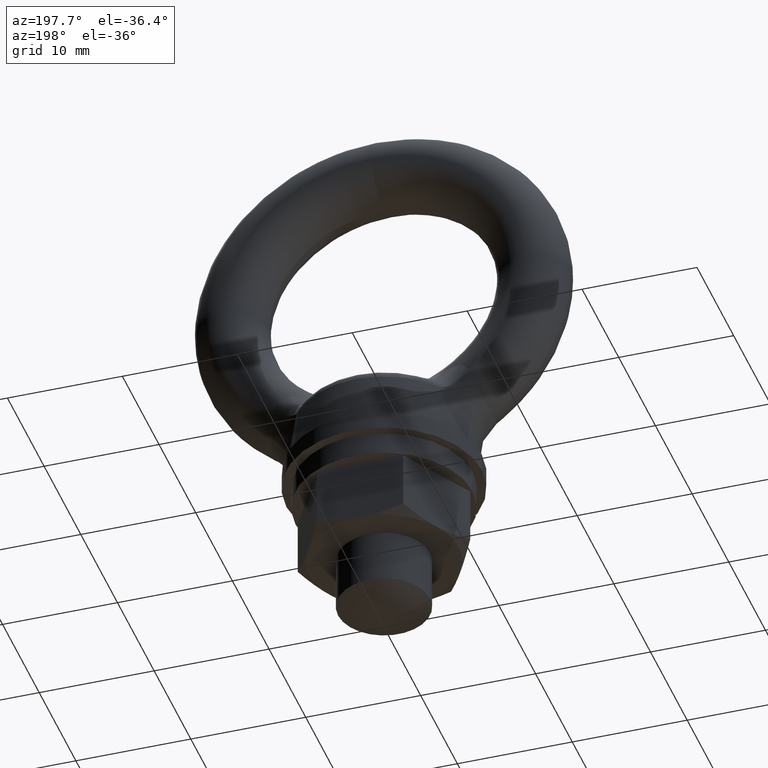
[diagram: clean part render]
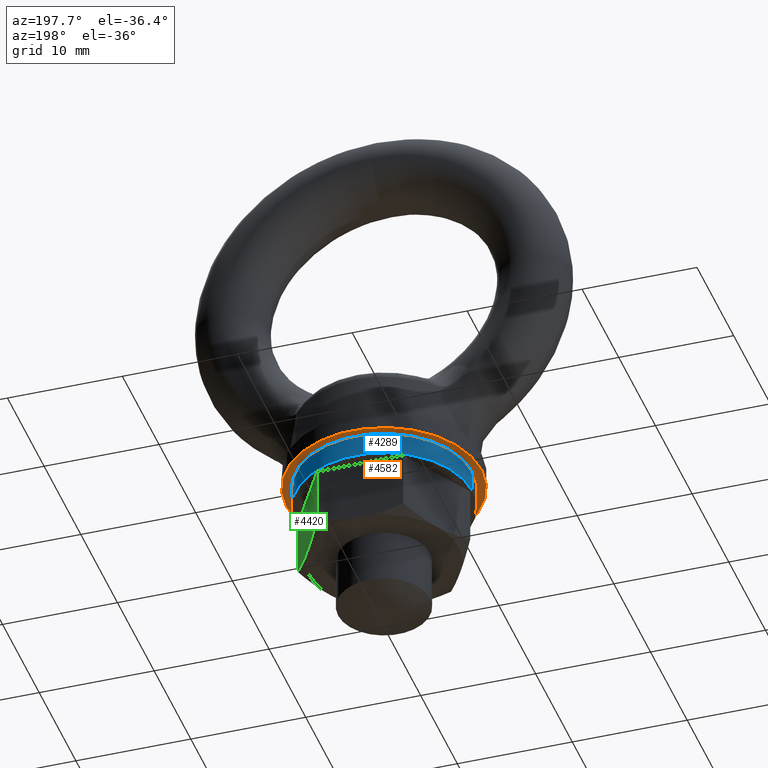
[diagram: same view with three faces highlighted in distinct colors, each labeled with its STEP entity id]
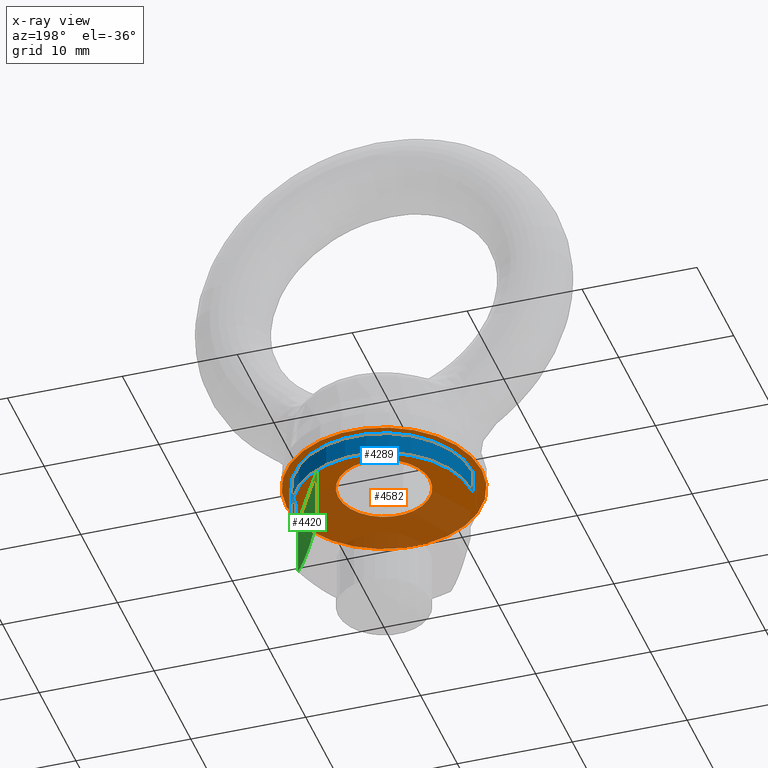
[diagram: x-ray of the same camera — body ghosted, the three highlighted faces saturated]
A machine part, auxiliary view with three faces highlighted in distinct colors.
The next image is the same camera in x-ray (body ghosted, the three faces saturated) — at least one of them is partly hidden behind the body in this view.
Their STEP definitions:

[orange] entity #4582 — the highlighted planar face has unit normal (0, 0, 1).
#1227 = CIRCLE ( 'NONE', #1280, 4.000000000000000000 ) ;
#1277 = DIRECTION ( 'NONE',  ( 1.000000000000000000, 0.0000000000000000000, 0.0000000000000000000 ) ) ;
#1278 = DIRECTION ( 'NONE',  ( 0.0000000000000000000, 0.0000000000000000000, -1.000000000000000000 ) ) ;
#1279 = CARTESIAN_POINT ( 'NONE',  ( 0.0000000000000000000, 0.0000000000000000000, -18.59999900000000000 ) ) ;
#1280 = AXIS2_PLACEMENT_3D ( 'NONE', #1279, #1278, #1277 ) ;
#2324 = DIRECTION ( 'NONE',  ( 1.000000000000000000, 0.0000000000000000000, 0.0000000000000000000 ) ) ;
#2325 = DIRECTION ( 'NONE',  ( 0.0000000000000000000, 0.0000000000000000000, 1.000000000000000000 ) ) ;
#2326 = CARTESIAN_POINT ( 'NONE',  ( 0.0000000000000000000, 0.0000000000000000000, -18.59999900000000000 ) ) ;
#2343 = AXIS2_PLACEMENT_3D ( 'NONE', #2326, #2325, #2324 ) ;
#2344 = PLANE ( 'NONE',  #2343 ) ;
#2345 = FACE_OUTER_BOUND ( 'NONE', #4667, .T. ) ;
#2348 = FACE_BOUND ( 'NONE', #4501, .T. ) ;
#4241 = EDGE_CURVE ( 'NONE', #4259, #4267, #5339, .T. ) ;
#4248 = VERTEX_POINT ( 'NONE', #5389 ) ;
#4257 = EDGE_CURVE ( 'NONE', #4248, #4258, #5371, .T. ) ;
#4258 = VERTEX_POINT ( 'NONE', #5372 ) ;
#4259 = VERTEX_POINT ( 'NONE', #5430 ) ;
#4266 = EDGE_CURVE ( 'NONE', #4267, #4259, #5415, .T. ) ;
#4267 = VERTEX_POINT ( 'NONE', #5410 ) ;
#4461 = EDGE_CURVE ( 'NONE', #4258, #4248, #1227, .T. ) ;
#4501 = EDGE_LOOP ( 'NONE', ( #4618, #4643 ) ) ;
#4582 = ADVANCED_FACE ( 'NONE', ( #2348, #2345 ), #2344, .F. ) ;
#4618 = ORIENTED_EDGE ( 'NONE', *, *, #4461, .F. ) ;
#4619 = ORIENTED_EDGE ( 'NONE', *, *, #4266, .T. ) ;
#4634 = ORIENTED_EDGE ( 'NONE', *, *, #4241, .T. ) ;
#4643 = ORIENTED_EDGE ( 'NONE', *, *, #4257, .F. ) ;
#4667 = EDGE_LOOP ( 'NONE', ( #4619, #4634 ) ) ;
#5335 = DIRECTION ( 'NONE',  ( 1.000000000000000000, 0.0000000000000000000, 0.0000000000000000000 ) ) ;
#5336 = DIRECTION ( 'NONE',  ( 0.0000000000000000000, 0.0000000000000000000, -1.000000000000000000 ) ) ;
#5337 = CARTESIAN_POINT ( 'NONE',  ( 0.0000000000000000000, 0.0000000000000000000, -18.59999900000000000 ) ) ;
#5338 = AXIS2_PLACEMENT_3D ( 'NONE', #5337, #5336, #5335 ) ;
#5339 = CIRCLE ( 'NONE', #5338, 8.500000000000000000 ) ;
#5367 = DIRECTION ( 'NONE',  ( 1.000000000000000000, 0.0000000000000000000, 0.0000000000000000000 ) ) ;
#5368 = DIRECTION ( 'NONE',  ( 0.0000000000000000000, 0.0000000000000000000, -1.000000000000000000 ) ) ;
#5369 = CARTESIAN_POINT ( 'NONE',  ( 0.0000000000000000000, 0.0000000000000000000, -18.59999900000000000 ) ) ;
#5370 = AXIS2_PLACEMENT_3D ( 'NONE', #5369, #5368, #5367 ) ;
#5371 = CIRCLE ( 'NONE', #5370, 4.000000000000000000 ) ;
#5372 = CARTESIAN_POINT ( 'NONE',  ( -4.000000000000000000, 0.0000000000000000000, -18.59999900000000000 ) ) ;
#5389 = CARTESIAN_POINT ( 'NONE',  ( 4.000000000000000000, 4.898425415289509000E-016, -18.59999900000000000 ) ) ;
#5410 = CARTESIAN_POINT ( 'NONE',  ( -8.500000000000000000, 0.0000000000000000000, -18.59999900000000000 ) ) ;
#5411 = DIRECTION ( 'NONE',  ( 1.000000000000000000, 0.0000000000000000000, 0.0000000000000000000 ) ) ;
#5412 = DIRECTION ( 'NONE',  ( 0.0000000000000000000, 0.0000000000000000000, -1.000000000000000000 ) ) ;
#5413 = CARTESIAN_POINT ( 'NONE',  ( 0.0000000000000000000, 0.0000000000000000000, -18.59999900000000000 ) ) ;
#5414 = AXIS2_PLACEMENT_3D ( 'NONE', #5413, #5412, #5411 ) ;
#5415 = CIRCLE ( 'NONE', #5414, 8.500000000000000000 ) ;
#5430 = CARTESIAN_POINT ( 'NONE',  ( 8.500000000000000000, 1.040915400749020900E-015, -18.59999900000000000 ) ) ;

[blue] entity #4289 — the highlighted cylindrical surface (partial cylindrical patch) has radius 7.7 mm, axis along (0, 0, -1).
#4218 = EDGE_CURVE ( 'NONE', #4295, #4219, #4896, .T. ) ;
#4219 = VERTEX_POINT ( 'NONE', #4907 ) ;
#4220 = ORIENTED_EDGE ( 'NONE', *, *, #4221, .F. ) ;
#4221 = EDGE_CURVE ( 'NONE', #4222, #4219, #4906, .T. ) ;
#4222 = VERTEX_POINT ( 'NONE', #4901 ) ;
#4223 = ORIENTED_EDGE ( 'NONE', *, *, #4224, .F. ) ;
#4224 = EDGE_CURVE ( 'NONE', #4294, #4222, #5324, .T. ) ;
#4289 = ADVANCED_FACE ( 'NONE', ( #5432 ), #5431, .T. ) ;
#4290 = EDGE_LOOP ( 'NONE', ( #4292, #4296, #4220, #4223 ) ) ;
#4292 = ORIENTED_EDGE ( 'NONE', *, *, #4293, .T. ) ;
#4293 = EDGE_CURVE ( 'NONE', #4294, #4295, #5484, .T. ) ;
#4294 = VERTEX_POINT ( 'NONE', #5479 ) ;
#4295 = VERTEX_POINT ( 'NONE', #5478 ) ;
#4296 = ORIENTED_EDGE ( 'NONE', *, *, #4218, .T. ) ;
#4895 = CARTESIAN_POINT ( 'NONE',  ( 7.700000000000000200, 9.429468924432306500E-016, 979.4000009999999700 ) ) ;
#4896 = LINE ( 'NONE', #4895, #4909 ) ;
#4901 = CARTESIAN_POINT ( 'NONE',  ( -7.700000000000000200, 0.0000000000000000000, -20.59999900000000000 ) ) ;
#4902 = DIRECTION ( 'NONE',  ( 1.000000000000000000, 0.0000000000000000000, 0.0000000000000000000 ) ) ;
#4903 = DIRECTION ( 'NONE',  ( 0.0000000000000000000, 0.0000000000000000000, -1.000000000000000000 ) ) ;
#4904 = CARTESIAN_POINT ( 'NONE',  ( 0.0000000000000000000, 0.0000000000000000000, -20.59999900000000000 ) ) ;
#4905 = AXIS2_PLACEMENT_3D ( 'NONE', #4904, #4903, #4902 ) ;
#4906 = CIRCLE ( 'NONE', #4905, 7.700000000000000200 ) ;
#4907 = CARTESIAN_POINT ( 'NONE',  ( 7.700000000000000200, 9.429468924432306500E-016, -20.59999900000000000 ) ) ;
#4908 = DIRECTION ( 'NONE',  ( 0.0000000000000000000, 0.0000000000000000000, -1.000000000000000000 ) ) ;
#4909 = VECTOR ( 'NONE', #4908, 1000.000000000000000 ) ;
#5319 = CARTESIAN_POINT ( 'NONE',  ( -7.700000000000000200, 0.0000000000000000000, 979.4000009999999700 ) ) ;
#5321 = DIRECTION ( 'NONE',  ( 0.0000000000000000000, 0.0000000000000000000, -1.000000000000000000 ) ) ;
#5322 = VECTOR ( 'NONE', #5321, 1000.000000000000000 ) ;
#5324 = LINE ( 'NONE', #5319, #5322 ) ;
#5431 = CYLINDRICAL_SURFACE ( 'NONE', #5488, 7.700000000000000200 ) ;
#5432 = FACE_OUTER_BOUND ( 'NONE', #4290, .T. ) ;
#5478 = CARTESIAN_POINT ( 'NONE',  ( 7.700000000000000200, 9.429468924432306500E-016, -18.59999900000000000 ) ) ;
#5479 = CARTESIAN_POINT ( 'NONE',  ( -7.700000000000000200, 0.0000000000000000000, -18.59999900000000000 ) ) ;
#5480 = DIRECTION ( 'NONE',  ( 1.000000000000000000, 0.0000000000000000000, 0.0000000000000000000 ) ) ;
#5481 = DIRECTION ( 'NONE',  ( 0.0000000000000000000, 0.0000000000000000000, -1.000000000000000000 ) ) ;
#5482 = CARTESIAN_POINT ( 'NONE',  ( 0.0000000000000000000, 0.0000000000000000000, -18.59999900000000000 ) ) ;
#5483 = AXIS2_PLACEMENT_3D ( 'NONE', #5482, #5481, #5480 ) ;
#5484 = CIRCLE ( 'NONE', #5483, 7.700000000000000200 ) ;
#5485 = DIRECTION ( 'NONE',  ( -1.000000000000000000, 0.0000000000000000000, 0.0000000000000000000 ) ) ;
#5486 = DIRECTION ( 'NONE',  ( 0.0000000000000000000, 0.0000000000000000000, -1.000000000000000000 ) ) ;
#5487 = CARTESIAN_POINT ( 'NONE',  ( 0.0000000000000000000, 0.0000000000000000000, 979.4000009999999700 ) ) ;
#5488 = AXIS2_PLACEMENT_3D ( 'NONE', #5487, #5486, #5485 ) ;

[green] entity #4420 — the highlighted planar face has unit normal (-0.866, -0.5, 0).
#383 = EDGE_CURVE ( 'NONE', #384, #4349, #4672, .T. ) ;
#384 = VERTEX_POINT ( 'NONE', #4688 ) ;
#984 = CARTESIAN_POINT ( 'NONE',  ( 7.505552999999999900, 2.572461111960099600E-016, -25.51944270476554900 ) ) ;
#1220 = CARTESIAN_POINT ( 'NONE',  ( 3.752777000000000000, 6.500000000000000000, -25.51944234415325100 ) ) ;
#1221 = CARTESIAN_POINT ( 'NONE',  ( 5.629165405748550700, 3.249999513034385100, -26.09999900000000000 ) ) ;
#1222 = CARTESIAN_POINT ( 'NONE',  ( 5.309483995360259300, 3.803703852870055500, -26.09999906179120200 ) ) ;
#1223 = CARTESIAN_POINT ( 'NONE',  ( 4.993776882577080300, 4.350524721765681100, -26.04466879096696300 ) ) ;
#1224 = CARTESIAN_POINT ( 'NONE',  ( 4.368923659950979800, 5.432802466845496200, -25.84266355218400300 ) ) ;
#1225 = CARTESIAN_POINT ( 'NONE',  ( 4.059729228174680800, 5.968343039090132000, -25.69666133996237200 ) ) ;
#1226 = CARTESIAN_POINT ( 'NONE',  ( 3.752777000000000000, 6.500000000000000000, -25.51944234415325100 ) ) ;
#1228 = B_SPLINE_CURVE_WITH_KNOTS ( 'NONE', 3,
 ( #1226, #1225, #1224, #1223, #1222, #1221 ),
 .UNSPECIFIED., .F., .F.,
 ( 4, 2, 4 ),
 ( 2.380732904823989600E-007, 0.001898836160103544700, 0.003797434246916606700 ),
 .UNSPECIFIED. ) ;
#1229 = CARTESIAN_POINT ( 'NONE',  ( 5.629165405748550700, 3.249999513034385100, -26.09999900000000000 ) ) ;
#1230 = DIRECTION ( 'NONE',  ( 0.4999999250822129700, -0.8660254470382388000, 0.0000000000000000000 ) ) ;
#1231 = DIRECTION ( 'NONE',  ( -0.8660254470382389200, -0.4999999250822130300, 0.0000000000000000000 ) ) ;
#1232 = CARTESIAN_POINT ( 'NONE',  ( 7.505552999999999900, 0.0000000000000000000, 973.9000009999999700 ) ) ;
#1241 = AXIS2_PLACEMENT_3D ( 'NONE', #1232, #1231, #1230 ) ;
#1243 = PLANE ( 'NONE',  #1241 ) ;
#1244 = FACE_OUTER_BOUND ( 'NONE', #4421, .T. ) ;
#4182 = EDGE_CURVE ( 'NONE', #384, #4236, #4786, .T. ) ;
#4183 = ORIENTED_EDGE ( 'NONE', *, *, #383, .T. ) ;
#4184 = ORIENTED_EDGE ( 'NONE', *, *, #4185, .F. ) ;
#4185 = EDGE_CURVE ( 'NONE', #4425, #4349, #4780, .T. ) ;
#4234 = ORIENTED_EDGE ( 'NONE', *, *, #4235, .F. ) ;
#4235 = EDGE_CURVE ( 'NONE', #4236, #4424, #5347, .T. ) ;
#4236 = VERTEX_POINT ( 'NONE', #5343 ) ;
#4237 = ORIENTED_EDGE ( 'NONE', *, *, #4182, .F. ) ;
#4349 = VERTEX_POINT ( 'NONE', #984 ) ;
#4420 = ADVANCED_FACE ( 'NONE', ( #1244 ), #1243, .F. ) ;
#4421 = EDGE_LOOP ( 'NONE', ( #4422, #4234, #4237, #4183, #4184 ) ) ;
#4422 = ORIENTED_EDGE ( 'NONE', *, *, #4423, .F. ) ;
#4423 = EDGE_CURVE ( 'NONE', #4424, #4425, #1228, .T. ) ;
#4424 = VERTEX_POINT ( 'NONE', #1220 ) ;
#4425 = VERTEX_POINT ( 'NONE', #1229 ) ;
#4670 = VECTOR ( 'NONE', #4689, 1000.000000000000000 ) ;
#4671 = CARTESIAN_POINT ( 'NONE',  ( 7.505552999999999900, 0.0000000000000000000, 973.9000009999999700 ) ) ;
#4672 = LINE ( 'NONE', #4671, #4670 ) ;
#4688 = CARTESIAN_POINT ( 'NONE',  ( 7.505552999999999900, 0.0000000000000000000, -20.59999900000000000 ) ) ;
#4689 = DIRECTION ( 'NONE',  ( 0.0000000000000000000, 0.0000000000000000000, -1.000000000000000000 ) ) ;
#4771 = CARTESIAN_POINT ( 'NONE',  ( 7.505552999999999900, 2.572461111960099600E-016, -25.51944270476554900 ) ) ;
#4772 = CARTESIAN_POINT ( 'NONE',  ( 7.199367180434229000, 0.5303295019946578900, -25.69621917011419800 ) ) ;
#4773 = CARTESIAN_POINT ( 'NONE',  ( 6.890626811885066000, 1.065083613502928500, -25.84215158536864000 ) ) ;
#4774 = CARTESIAN_POINT ( 'NONE',  ( 6.421950100857990200, 1.876855651502522500, -25.99384348660517600 ) ) ;
#4775 = CARTESIAN_POINT ( 'NONE',  ( 6.264794122307085500, 2.149057845446655800, -26.03317354993854900 ) ) ;
#4776 = CARTESIAN_POINT ( 'NONE',  ( 5.948365512543061200, 2.697128384020275300, -26.08627685966043000 ) ) ;
#4777 = CARTESIAN_POINT ( 'NONE',  ( 5.788408378141491900, 2.974182323186962900, -26.09999906255262700 ) ) ;
#4778 = CARTESIAN_POINT ( 'NONE',  ( 5.629165405748550700, 3.249999513034385100, -26.09999900000000000 ) ) ;
#4780 = B_SPLINE_CURVE_WITH_KNOTS ( 'NONE', 3,
 ( #4778, #4777, #4776, #4775, #4774, #4773, #4772, #4771 ),
 .UNSPECIFIED., .F., .F.,
 ( 4, 2, 2, 4 ),
 ( 0.003797434246916606700, 0.004743184207435790000, 0.005688934167954972500, 0.007580434088993339200 ),
 .UNSPECIFIED. ) ;
#4783 = DIRECTION ( 'NONE',  ( -0.4999999250822129700, 0.8660254470382388000, 0.0000000000000000000 ) ) ;
#4784 = VECTOR ( 'NONE', #4783, 1000.000000000000100 ) ;
#4785 = CARTESIAN_POINT ( 'NONE',  ( 7.505552999999999900, 0.0000000000000000000, -20.59999900000000000 ) ) ;
#4786 = LINE ( 'NONE', #4785, #4784 ) ;
#5343 = CARTESIAN_POINT ( 'NONE',  ( 3.752777000000000000, 6.500000000000000000, -20.59999900000000000 ) ) ;
#5344 = DIRECTION ( 'NONE',  ( 0.0000000000000000000, 0.0000000000000000000, -1.000000000000000000 ) ) ;
#5345 = VECTOR ( 'NONE', #5344, 1000.000000000000000 ) ;
#5346 = CARTESIAN_POINT ( 'NONE',  ( 3.752777000000000000, 6.500000000000000000, 973.9000009999999700 ) ) ;
#5347 = LINE ( 'NONE', #5346, #5345 ) ;